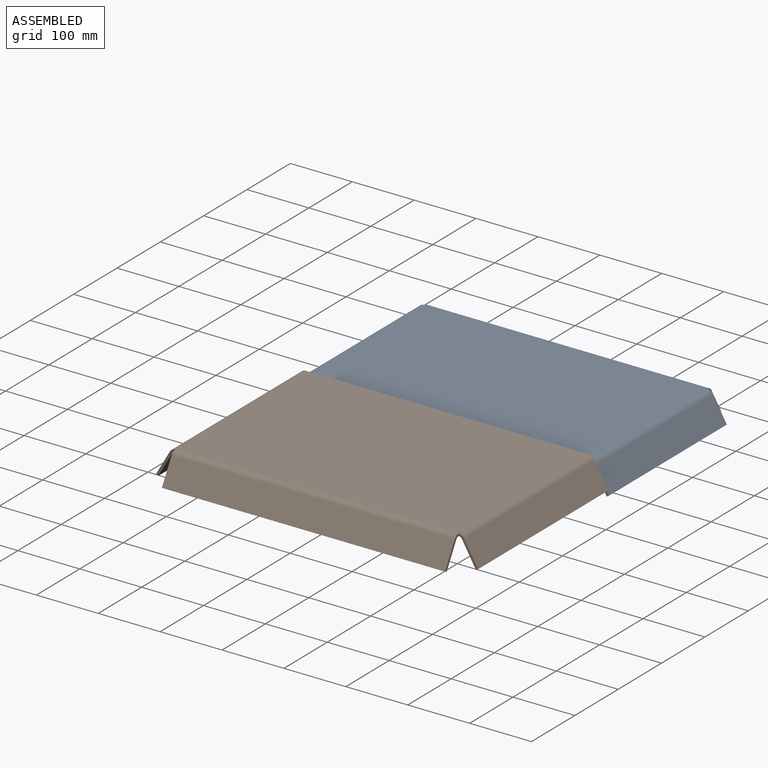
[diagram: assembled view]
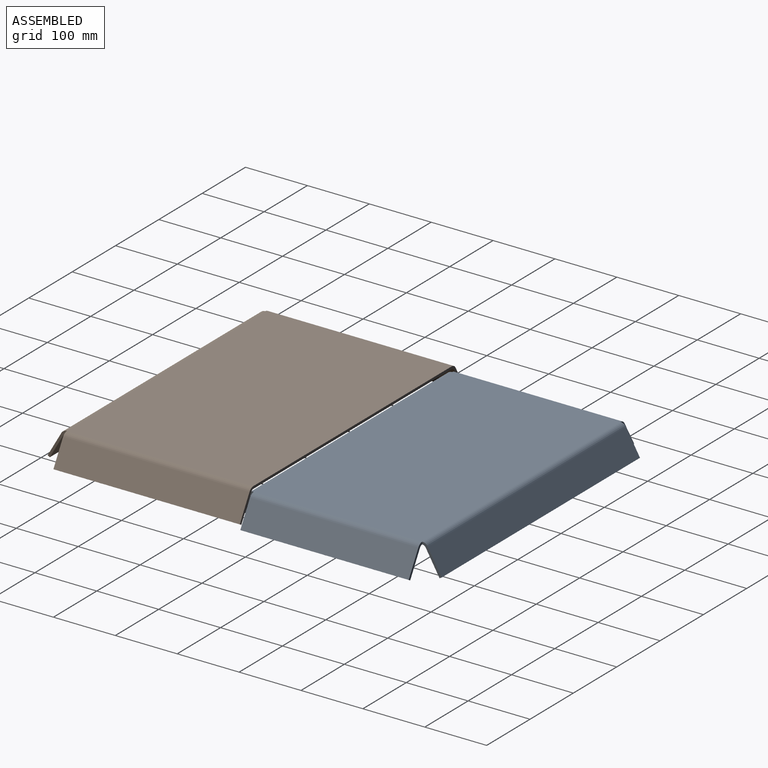
[diagram: assembled view, second angle]
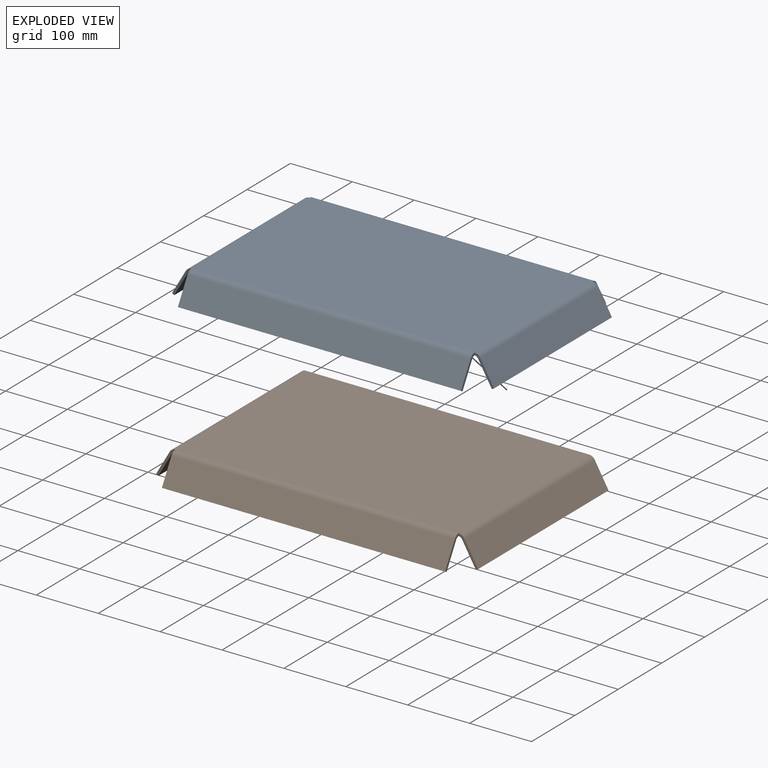
[diagram: exploded view]
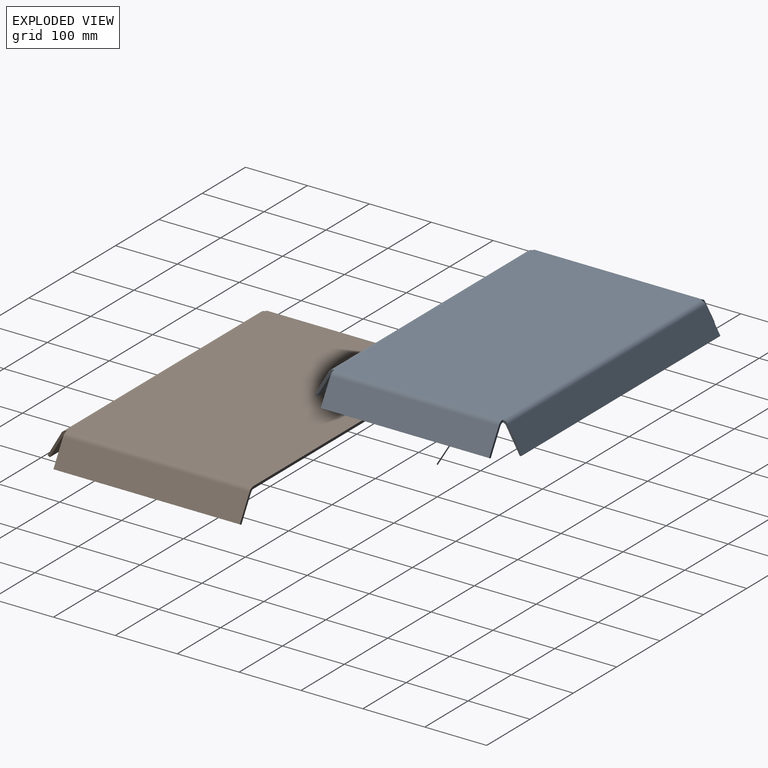
[diagram: exploded view, second angle]
ASSEMBLY  parts=2 mates=3
PART A: 38 faces, bbox 520.3x334.9x46 mm
  f0: plane 457.49x272.07mm, normal (0,0,-1), area 124467.6mm2, adj f9,f18,f27,f36
  f1: plane 457.49x272.07mm, normal (0,0,1), area 124467.6mm2, adj f10,f19,f28,f37
  f2: plane 457.49x3.52mm, normal (0,0.5,0.87), area 1859.2mm2, adj f3,f4,f5,f6
  f3: plane 40.82x25.91mm, normal (1,0,0), area 182mm2, adj f2,f5,f6,f7
  f4: plane 40.82x25.91mm, normal (-1,0,0), area 182mm2, adj f2,f5,f6,f8
  f5: plane 457.49x38.79mm, normal (0,0.87,-0.5), area 20489.7mm2, adj f2,f3,f4,f9
  f6: plane 457.49x38.79mm, normal (0,-0.87,0.5), area 20489.7mm2, adj f2,f3,f4,f10
  f7: plane 9.02x7.24mm, normal (1,0,0), area 35.7mm2, adj f3,f9,f10,f35
  f8: plane 9.02x7.24mm, normal (-1,0,0), area 35.7mm2, adj f4,f9,f10,f26
  f9: cylinder r=10.41mm len=457.49mm, axis (1,0,0), area 4989.1mm2, adj f0,f5,f7,f8
  f10: cylinder r=6.35mm len=457.49mm, axis (1,0,0), area 3042.2mm2, adj f1,f6,f7,f8
  f11: plane 457.49x3.52mm, normal (0,-0.5,0.87), area 1859.2mm2, adj f12,f13,f14,f15
  f12: plane 40.82x25.91mm, normal (-1,0,0), area 182mm2, adj f11,f14,f15,f17
  f13: plane 40.82x25.91mm, normal (1,0,0), area 182mm2, adj f11,f14,f15,f16
  f14: plane 457.49x38.79mm, normal (0,-0.87,-0.5), area 20489.7mm2, adj f11,f12,f13,f18
  f15: plane 457.49x38.79mm, normal (0,0.87,0.5), area 20489.7mm2, adj f11,f12,f13,f19
  f16: plane 9.02x7.24mm, normal (1,0,0), area 35.7mm2, adj f13,f18,f19,f34
  f17: plane 9.02x7.24mm, normal (-1,0,0), area 35.7mm2, adj f12,f18,f19,f25
  f18: cylinder r=10.41mm len=457.49mm, axis (1,0,0), area 4989.1mm2, adj f0,f14,f16,f17
  f19: cylinder r=6.35mm len=457.49mm, axis (1,0,0), area 3042.2mm2, adj f1,f15,f16,f17
  f20: plane 40.82x25.91mm, normal (0,-1,0), area 182mm2, adj f21,f23,f24,f25
  f21: plane 272.07x3.52mm, normal (-0.5,0,0.87), area 1105.7mm2, adj f20,f22,f23,f24
  f22: plane 40.82x25.91mm, normal (0,1,0), area 182mm2, adj f21,f23,f24,f26
  f23: plane 272.07x38.79mm, normal (-0.87,0,-0.5), area 12185.2mm2, adj f20,f21,f22,f27
  f24: plane 272.07x38.79mm, normal (0.87,0,0.5), area 12185.2mm2, adj f20,f21,f22,f28
  f25: plane 9.02x7.24mm, normal (0,-1,0), area 35.7mm2, adj f17,f20,f27,f28
  f26: plane 9.02x7.24mm, normal (0,1,0), area 35.7mm2, adj f8,f22,f27,f28
  f27: cylinder r=10.41mm len=272.07mm, axis (0,-1,0), area 2967mm2, adj f0,f23,f25,f26
  f28: cylinder r=6.35mm len=272.07mm, axis (0,-1,0), area 1809.2mm2, adj f1,f24,f25,f26
  f29: plane 272.07x3.52mm, normal (0.5,0,0.87), area 1105.7mm2, adj f30,f31,f32,f33
  f30: plane 40.82x25.91mm, normal (0,-1,0), area 182mm2, adj f29,f32,f33,f34
  f31: plane 40.82x25.91mm, normal (0,1,0), area 182mm2, adj f29,f32,f33,f35
  f32: plane 272.07x38.79mm, normal (0.87,0,-0.5), area 12185.2mm2, adj f29,f30,f31,f36
  f33: plane 272.07x38.79mm, normal (-0.87,0,0.5), area 12185.2mm2, adj f29,f30,f31,f37
  f34: plane 9.02x7.24mm, normal (0,-1,0), area 35.7mm2, adj f16,f30,f36,f37
  f35: plane 9.02x7.24mm, normal (0,1,0), area 35.7mm2, adj f7,f31,f36,f37
  f36: cylinder r=10.41mm len=272.07mm, axis (0,-1,0), area 2967mm2, adj f0,f32,f34,f35
  f37: cylinder r=6.35mm len=272.07mm, axis (0,-1,0), area 1809.2mm2, adj f1,f33,f34,f35
PART B: 30 faces, bbox 520.3x332.5x46 mm
  f0: plane 457.49x3.52mm, normal (0,-0.5,0.87), area 1859.2mm2, adj f1,f2,f3,f4
  f1: plane 40.82x25.91mm, normal (-1,0,0), area 182mm2, adj f0,f3,f4,f23
  f2: plane 40.82x25.91mm, normal (1,0,0), area 182mm2, adj f0,f3,f4,f22
  f3: plane 457.49x38.79mm, normal (0,-0.87,-0.5), area 20489.7mm2, adj f0,f1,f2,f24
  f4: plane 457.49x38.79mm, normal (0,0.87,0.5), area 20489.7mm2, adj f0,f1,f2,f25
  f5: plane 301.13x3.52mm, normal (-0.5,0,0.87), area 1223.8mm2, adj f6,f7,f8,f9
  f6: plane 40.82x25.91mm, normal (0,1,0), area 182mm2, adj f5,f8,f9,f27
  f7: plane 40.82x25.91mm, normal (0,-1,0), area 182mm2, adj f5,f8,f9,f26
  f8: plane 301.13x38.79mm, normal (-0.87,0,-0.5), area 13487mm2, adj f5,f6,f7,f28
  f9: plane 301.13x38.79mm, normal (0.87,0,0.5), area 13487mm2, adj f5,f6,f7,f29
  f10: plane 40.82x25.91mm, normal (0,1,0), area 182mm2, adj f11,f13,f14,f19
  f11: plane 301.13x3.52mm, normal (0.5,0,0.87), area 1223.8mm2, adj f10,f12,f13,f14
  f12: plane 40.82x25.91mm, normal (0,-1,0), area 182mm2, adj f11,f13,f14,f18
  f13: plane 301.13x38.79mm, normal (0.87,0,-0.5), area 13487mm2, adj f10,f11,f12,f20
  f14: plane 301.13x38.79mm, normal (-0.87,0,0.5), area 13487mm2, adj f10,f11,f12,f21
  f15: plane 457.49x4.06mm, normal (0,1,0), area 1859.2mm2, adj f16,f17,f19,f27
  f16: plane 457.49x301.13mm, normal (0,0,-1), area 137765mm2, adj f15,f20,f24,f28
  f17: plane 457.49x301.13mm, normal (0,0,1), area 137765mm2, adj f15,f21,f25,f29
  f18: plane 9.02x7.24mm, normal (0,-1,0), area 35.7mm2, adj f12,f20,f21,f22
  f19: plane 9.02x7.24mm, normal (0,1,0), area 35.7mm2, adj f10,f15,f20,f21
  f20: cylinder r=10.41mm len=301.13mm, axis (0,-1,0), area 3284mm2, adj f13,f16,f18,f19
  f21: cylinder r=6.35mm len=301.13mm, axis (0,-1,0), area 2002.5mm2, adj f14,f17,f18,f19
  f22: plane 9.02x7.24mm, normal (1,0,0), area 35.7mm2, adj f2,f18,f24,f25
  f23: plane 9.02x7.24mm, normal (-1,0,0), area 35.7mm2, adj f1,f24,f25,f26
  f24: cylinder r=10.41mm len=457.49mm, axis (1,0,0), area 4989.1mm2, adj f3,f16,f22,f23
  f25: cylinder r=6.35mm len=457.49mm, axis (1,0,0), area 3042.2mm2, adj f4,f17,f22,f23
  f26: plane 9.02x7.24mm, normal (0,-1,0), area 35.7mm2, adj f7,f23,f28,f29
  f27: plane 9.02x7.24mm, normal (0,1,0), area 35.7mm2, adj f6,f15,f28,f29
  f28: cylinder r=10.41mm len=301.13mm, axis (0,-1,0), area 3284mm2, adj f8,f16,f26,f27
  f29: cylinder r=6.35mm len=301.13mm, axis (0,-1,0), area 2002.5mm2, adj f9,f17,f26,f27
PLACE A rot(axis=(1,0,0),180deg) t=(0,0,0)mm
PLACE B rot(axis=(0,1,0),180deg) t=(0,231.49,8.13)mm
MATE parallel A.f0 <-> B.f17  axis (0,0,1) through (0,0,0)mm
MATE planar B.f14 <-> A.f23  axis (0.87,0,-0.5) through (-245.44,-287.37,-18.5)mm
MATE planar B.f9 <-> A.f32  axis (-0.87,0,-0.5) through (245.44,-287.37,-18.5)mm
